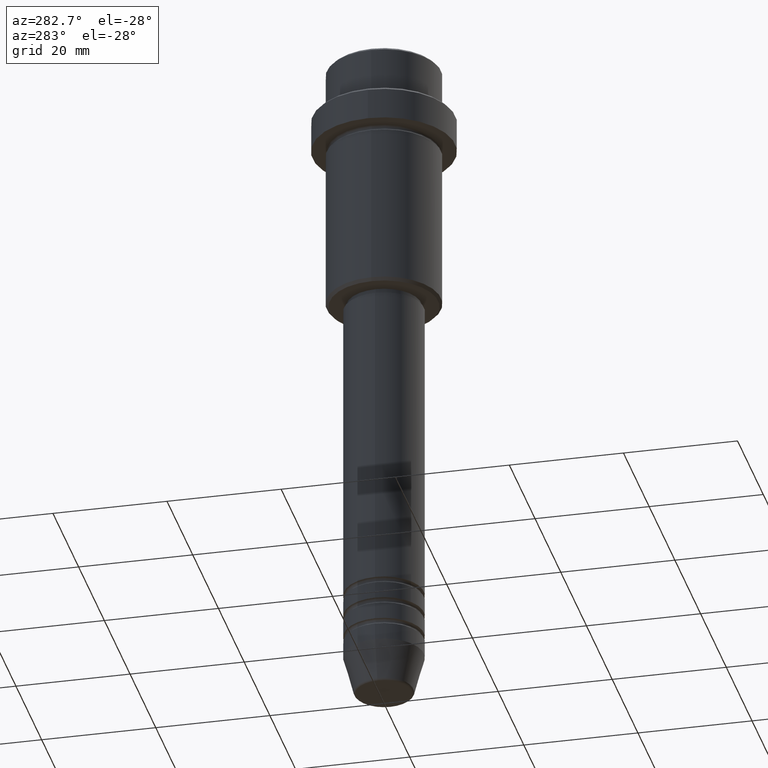
[diagram: clean part render]
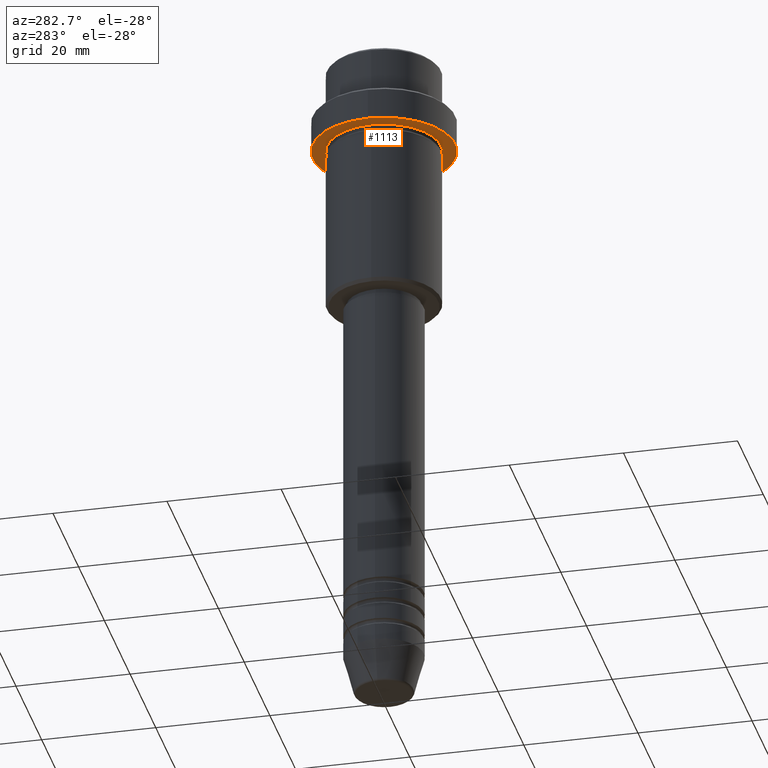
[diagram: same view with one face highlighted and labeled with its STEP entity id]
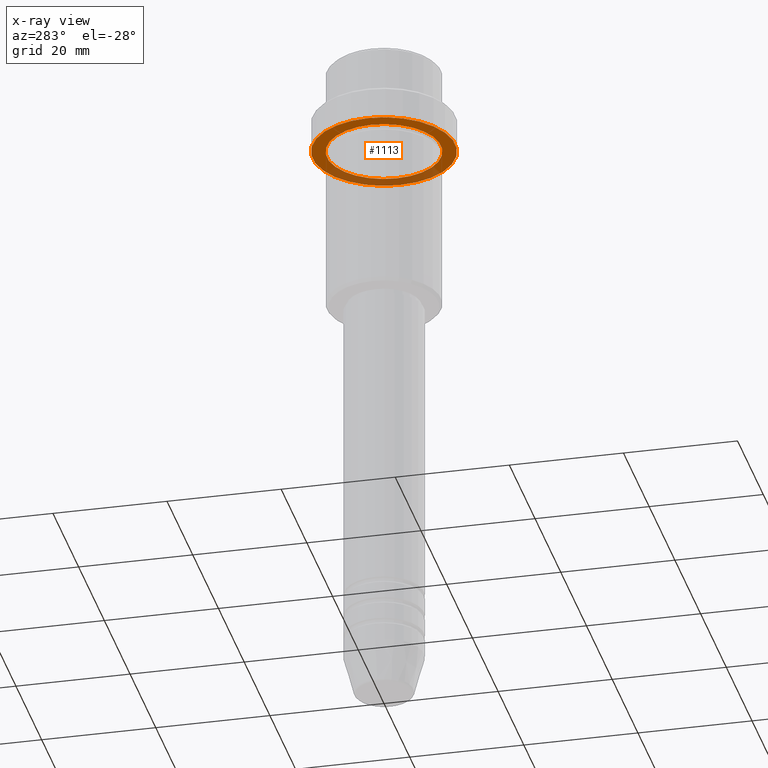
[diagram: x-ray of the same camera — body ghosted, the highlighted face saturated]
A machine part, auxiliary view. The second image highlights one B-rep face of the part: STEP entity #1113.
The next image is the same camera in x-ray: the body ghosted, the highlighted face saturated — about 30% of this face is hidden behind the body in this view.
In plain terms, the highlighted planar face has unit normal (0, 0, -1).
Its self-contained STEP definition (entity closure, byte-faithful):
#59 = DIRECTION ( 'NONE',  ( -0.000000000000000000, -0.000000000000000000, 1.000000000000000000 ) ) ;
#132 = DIRECTION ( 'NONE',  ( -0.000000000000000000, -0.000000000000000000, 1.000000000000000000 ) ) ;
#247 = ORIENTED_EDGE ( 'NONE', *, *, #664, .F. ) ;
#253 = DIRECTION ( 'NONE',  ( 1.000000000000000000, 0.000000000000000000, 0.000000000000000000 ) ) ;
#400 = DIRECTION ( 'NONE',  ( -1.000000000000000000, 0.000000000000000000, 0.000000000000000000 ) ) ;
#426 = EDGE_CURVE ( 'NONE', #1048, #476, #1323, .T. ) ;
#433 = CARTESIAN_POINT ( 'NONE',  ( 12.50000000000000000, 0.000000000000000000, -15.00000000000000000 ) ) ;
#476 = VERTEX_POINT ( 'NONE', #880 ) ;
#523 = EDGE_LOOP ( 'NONE', ( #247, #837 ) ) ;
#533 = CIRCLE ( 'NONE', #1392, 12.50000000000000000 ) ;
#543 = DIRECTION ( 'NONE',  ( -1.000000000000000000, 0.000000000000000000, -0.000000000000000000 ) ) ;
#605 = EDGE_LOOP ( 'NONE', ( #1318, #959 ) ) ;
#613 = CARTESIAN_POINT ( 'NONE',  ( -12.50000000000000000, 1.530808498934191521E-15, -15.00000000000000000 ) ) ;
#646 = DIRECTION ( 'NONE',  ( 1.000000000000000000, 0.000000000000000000, 0.000000000000000000 ) ) ;
#664 = EDGE_CURVE ( 'NONE', #1404, #1196, #533, .T. ) ;
#668 = DIRECTION ( 'NONE',  ( -1.000000000000000000, 0.000000000000000000, 0.000000000000000000 ) ) ;
#686 = DIRECTION ( 'NONE',  ( -0.000000000000000000, -0.000000000000000000, 1.000000000000000000 ) ) ;
#770 = CIRCLE ( 'NONE', #1110, 12.50000000000000000 ) ;
#772 = DIRECTION ( 'NONE',  ( -0.000000000000000000, -0.000000000000000000, 1.000000000000000000 ) ) ;
#837 = ORIENTED_EDGE ( 'NONE', *, *, #1359, .F. ) ;
#880 = CARTESIAN_POINT ( 'NONE',  ( 9.999999999999992895, 1.224646799147352468E-15, -15.00000000000000000 ) ) ;
#900 = CIRCLE ( 'NONE', #1077, 9.999999999999992895 ) ;
#953 = FACE_OUTER_BOUND ( 'NONE', #523, .T. ) ;
#959 = ORIENTED_EDGE ( 'NONE', *, *, #1191, .T. ) ;
#966 = FACE_BOUND ( 'NONE', #605, .T. ) ;
#1009 = CARTESIAN_POINT ( 'NONE',  ( 0.000000000000000000, 0.000000000000000000, -15.00000000000000000 ) ) ;
#1048 = VERTEX_POINT ( 'NONE', #1066 ) ;
#1066 = CARTESIAN_POINT ( 'NONE',  ( -9.999999999999992895, 0.000000000000000000, -15.00000000000000000 ) ) ;
#1077 = AXIS2_PLACEMENT_3D ( 'NONE', #1372, #59, #400 ) ;
#1088 = DIRECTION ( 'NONE',  ( 0.000000000000000000, 0.000000000000000000, -1.000000000000000000 ) ) ;
#1110 = AXIS2_PLACEMENT_3D ( 'NONE', #1294, #772, #646 ) ;
#1113 = ADVANCED_FACE ( 'NONE', ( #966, #953 ), #1193, .T. ) ;
#1178 = CARTESIAN_POINT ( 'NONE',  ( 0.000000000000000000, 12.50000000000000000, -15.00000000000000000 ) ) ;
#1185 = AXIS2_PLACEMENT_3D ( 'NONE', #1178, #1088, #543 ) ;
#1191 = EDGE_CURVE ( 'NONE', #476, #1048, #900, .T. ) ;
#1193 = PLANE ( 'NONE',  #1185 ) ;
#1196 = VERTEX_POINT ( 'NONE', #613 ) ;
#1244 = CARTESIAN_POINT ( 'NONE',  ( 0.000000000000000000, 0.000000000000000000, -15.00000000000000000 ) ) ;
#1294 = CARTESIAN_POINT ( 'NONE',  ( 0.000000000000000000, 0.000000000000000000, -15.00000000000000000 ) ) ;
#1299 = AXIS2_PLACEMENT_3D ( 'NONE', #1244, #132, #668 ) ;
#1318 = ORIENTED_EDGE ( 'NONE', *, *, #426, .T. ) ;
#1323 = CIRCLE ( 'NONE', #1299, 9.999999999999992895 ) ;
#1359 = EDGE_CURVE ( 'NONE', #1196, #1404, #770, .T. ) ;
#1372 = CARTESIAN_POINT ( 'NONE',  ( 0.000000000000000000, 0.000000000000000000, -15.00000000000000000 ) ) ;
#1392 = AXIS2_PLACEMENT_3D ( 'NONE', #1009, #686, #253 ) ;
#1404 = VERTEX_POINT ( 'NONE', #433 ) ;